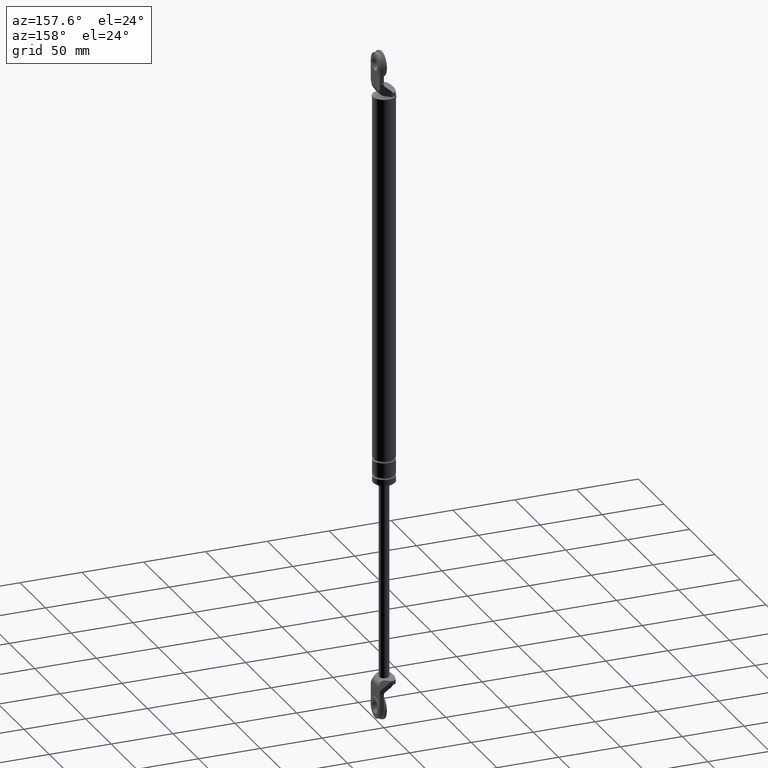
[diagram: clean part render]
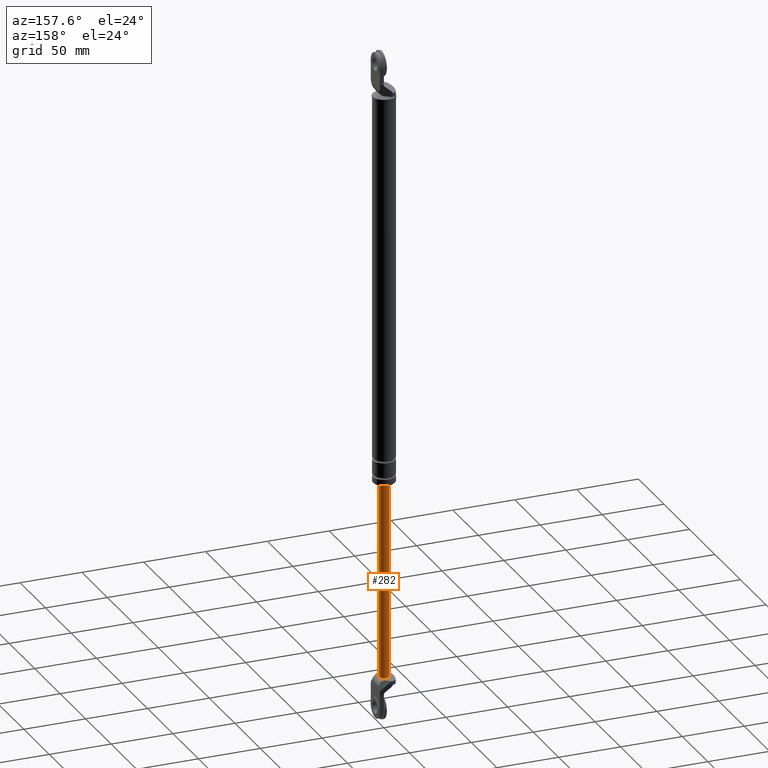
[diagram: same view with one face highlighted and labeled with its STEP entity id]
A machine part, auxiliary view. The second image highlights one B-rep face of the part: STEP entity #282.
In plain terms, the highlighted cylindrical surface (edge-blend (fillet) strip) has radius 4 mm, axis along (0, 0, 1).
Its self-contained STEP definition (entity closure, byte-faithful):
#282=ADVANCED_FACE('',(#1077),#1076,.T.);
#1076=CYLINDRICAL_SURFACE('',#1745,4.00000000000E+000);
#1077=FACE_OUTER_BOUND('',#1746,.T.);
#1742=CARTESIAN_POINT('',(0.00000000000E+000,3.58204186421E-014,0.00000000000E+000));
#1743=DIRECTION('',(-0.00000000000E+000,-0.00000000000E+000,1.00000000000E+000));
#1744=DIRECTION('',(1.00000000000E+000,-0.00000000000E+000,-0.00000000000E+000));
#1745=AXIS2_PLACEMENT_3D('',#1742,#1743,#1744);
#1746=EDGE_LOOP('',(#2140,#2141,#2142,#2143,#2144));
#2140=ORIENTED_EDGE('',*,*,#2351,.T.);
#2141=ORIENTED_EDGE('',*,*,#2352,.F.);
#2142=ORIENTED_EDGE('',*,*,#2318,.F.);
#2143=ORIENTED_EDGE('',*,*,#2349,.F.);
#2144=ORIENTED_EDGE('',*,*,#2353,.T.);
#2318=EDGE_CURVE('',#3419,#3426,#3427,.T.);
#2349=EDGE_CURVE('',#3619,#3419,#3626,.T.);
#2351=EDGE_CURVE('',#3633,#3632,#3640,.T.);
#2352=EDGE_CURVE('',#3426,#3632,#3646,.T.);
#2353=EDGE_CURVE('',#3619,#3633,#3652,.T.);
#3419=VERTEX_POINT('',#4325);
#3426=VERTEX_POINT('',#4329);
#3427=CIRCLE('',#4333,4.00000000000E+000);
#3619=VERTEX_POINT('',#4439);
#3626=CIRCLE('',#4447,4.00000000000E+000);
#3632=VERTEX_POINT('',#4448);
#3633=VERTEX_POINT('',#4449);
#3640=CIRCLE('',#4457,4.00000000000E+000);
#3646=(BOUNDED_CURVE() B_SPLINE_CURVE(1,(#4458,#4459),.UNSPECIFIED.,.F.,.F.) B_SPLINE_CURVE_WITH_KNOTS((2,2),(5.58659216388E-002,9.44134078355E-001),.UNSPECIFIED.) CURVE() GEOMETRIC_REPRESENTATION_ITEM() RATIONAL_B_SPLINE_CURVE((1.00000000000E+000,1.00000000000E+000)) REPRESENTATION_ITEM('') );
#3652=(BOUNDED_CURVE() B_SPLINE_CURVE(1,(#4460,#4461),.UNSPECIFIED.,.F.,.F.) B_SPLINE_CURVE_WITH_KNOTS((2,2),(5.58659217877E-002,9.44134078212E-001),.UNSPECIFIED.) CURVE() GEOMETRIC_REPRESENTATION_ITEM() RATIONAL_B_SPLINE_CURVE((7.50000000000E-001,7.50000000000E-001)) REPRESENTATION_ITEM('') );
#4325=CARTESIAN_POINT('',(2.00000000000E+000,3.46410161514E+000,-3.89000015000E+002));
#4329=CARTESIAN_POINT('',(4.00000000000E+000,3.61192557345E-014,-3.89000015000E+002));
#4330=CARTESIAN_POINT('',(0.00000000000E+000,3.58204186421E-014,-3.89000015000E+002));
#4331=DIRECTION('',(0.00000000000E+000,0.00000000000E+000,-1.00000000000E+000));
#4332=DIRECTION('',(5.00000000000E-001,8.66025403784E-001,0.00000000000E+000));
#4333=AXIS2_PLACEMENT_3D('',#4330,#4331,#4332);
#4439=CARTESIAN_POINT('',(-4.00000000000E+000,3.79704321421E-014,-3.89000015000E+002));
#4444=CARTESIAN_POINT('',(0.00000000000E+000,3.58204186421E-014,-3.89000015000E+002));
#4445=DIRECTION('',(0.00000000000E+000,0.00000000000E+000,-1.00000000000E+000));
#4446=DIRECTION('',(1.00000000000E+000,-0.00000000000E+000,-0.00000000000E+000));
#4447=AXIS2_PLACEMENT_3D('',#4444,#4445,#4446);
#4448=CARTESIAN_POINT('',(4.00000000000E+000,3.64153152077E-014,-2.30000015000E+002));
#4449=CARTESIAN_POINT('',(-4.00000000000E+000,3.58204186421E-014,-2.30000015000E+002));
#4454=CARTESIAN_POINT('',(0.00000000000E+000,3.58204186421E-014,-2.30000015000E+002));
#4455=DIRECTION('',(-0.00000000000E+000,0.00000000000E+000,-1.00000000000E+000));
#4456=DIRECTION('',(-1.00000000000E+000,-1.22460635382E-016,0.00000000000E+000));
#4457=AXIS2_PLACEMENT_3D('',#4454,#4455,#4456);
#4458=CARTESIAN_POINT('',(4.00000000000E+000,3.58204186421E-014,-3.89000015027E+002));
#4459=CARTESIAN_POINT('',(4.00000000000E+000,3.58204186421E-014,-2.30000014975E+002));
#4460=CARTESIAN_POINT('',(-4.00000000000E+000,3.58231962612E-014,-3.89000015000E+002));
#4461=CARTESIAN_POINT('',(-4.00000000000E+000,3.58231962612E-014,-2.30000015000E+002));